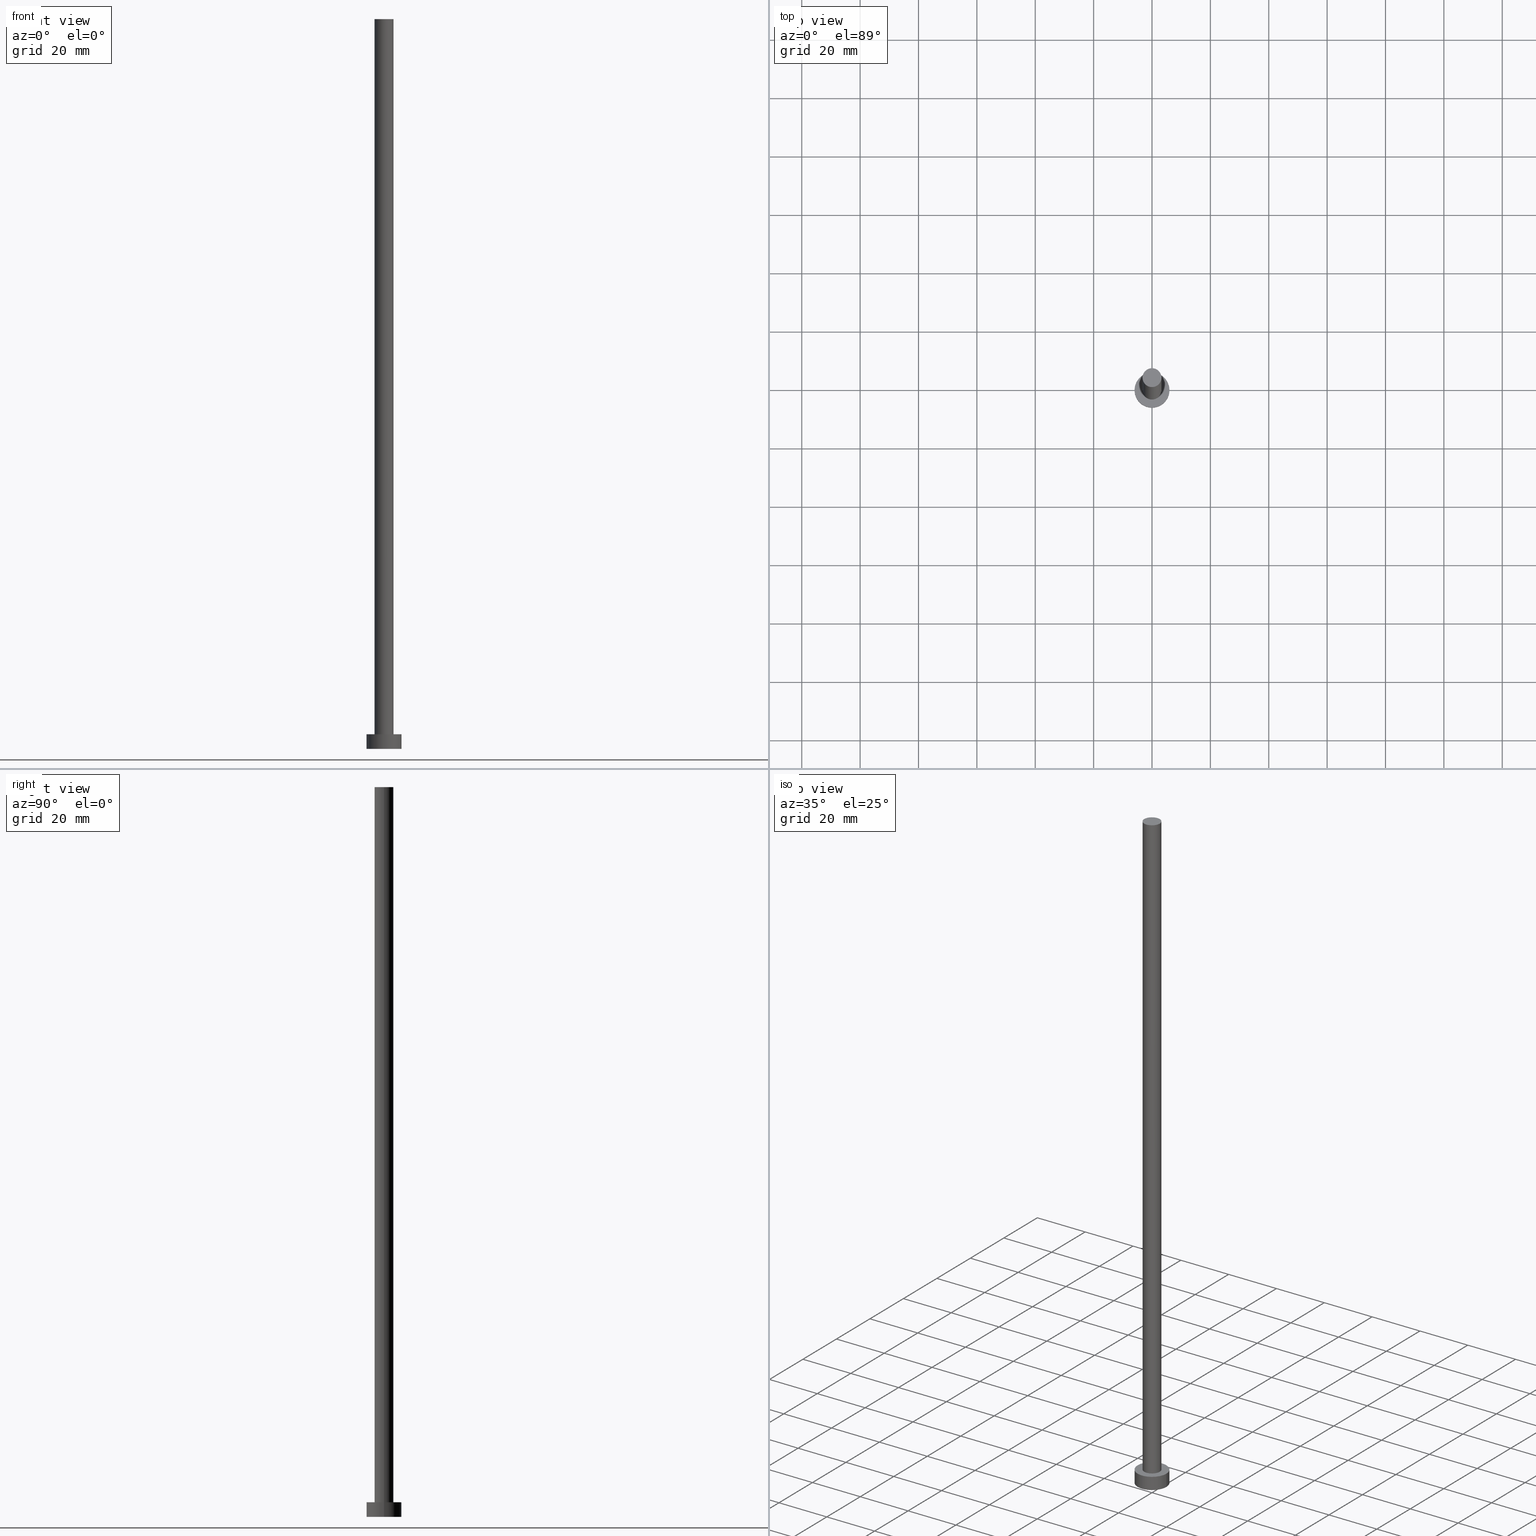
[diagram: canonical four-view strip — front | top / right | iso, engineering-drawing reading convention]
A machine part, canonical four-view strip (front | top / right | iso — engineering-drawing reading convention). The complete STEP part file that produces these views, byte-faithful:
ISO-10303-21;
HEADER;
FILE_DESCRIPTION (( 'STEP AP203' ),
    '1' );
FILE_NAME ('e601.STEP',
    '2023-02-13T11:48:17',
    ( '' ),
    ( '' ),
    'SwSTEP 2.0',
    'SolidWorks 2019',
    '' );
FILE_SCHEMA (( 'CONFIG_CONTROL_DESIGN' ));
ENDSEC;

DATA;
#1 = PERSON_AND_ORGANIZATION ( #57, #198 ) ;
#2 = PRODUCT_DEFINITION ( 'NEZN�M�', '', #228, #82 ) ;
#3 = CIRCLE ( 'NONE', #102, 6.000000000000000888 ) ;
#4 = DIRECTION ( 'NONE',  ( 1.000000000000000000, 0.000000000000000000, 0.000000000000000000 ) ) ;
#5 = LINE ( 'NONE', #59, #72 ) ;
#6 = DIRECTION ( 'NONE',  ( -1.000000000000000000, 0.000000000000000000, 0.000000000000000000 ) ) ;
#7 = ORIENTED_EDGE ( 'NONE', *, *, #90, .T. ) ;
#8 = DIRECTION ( 'NONE',  ( -0.000000000000000000, -0.000000000000000000, -1.000000000000000000 ) ) ;
#9 = ADVANCED_FACE ( 'NONE', ( #202 ), #203, .T. ) ;
#10 = MECHANICAL_CONTEXT ( 'NONE', #157, 'mechanical' ) ;
#11 = AXIS2_PLACEMENT_3D ( 'NONE', #145, #196, #134 ) ;
#12 = VERTEX_POINT ( 'NONE', #100 ) ;
#13 = CARTESIAN_POINT ( 'NONE',  ( 0.000000000000000000, 0.000000000000000000, 5.000000000000000000 ) ) ;
#14 = DATE_TIME_ROLE ( 'creation_date' ) ;
#15 = ORIENTED_EDGE ( 'NONE', *, *, #205, .T. ) ;
#16 = CC_DESIGN_APPROVAL ( #182, ( #2 ) ) ;
#17 = CARTESIAN_POINT ( 'NONE',  ( 0.000000000000000000, 0.000000000000000000, 250.0000000000000000 ) ) ;
#18 = ADVANCED_FACE ( 'NONE', ( #181 ), #225, .F. ) ;
#19 = COORDINATED_UNIVERSAL_TIME_OFFSET ( 1, 0, .AHEAD. ) ;
#20 = DIRECTION ( 'NONE',  ( 0.000000000000000000, 0.000000000000000000, 1.000000000000000000 ) ) ;
#21 = APPROVAL_ROLE ( '' ) ;
#22 = UNCERTAINTY_MEASURE_WITH_UNIT (LENGTH_MEASURE( 1.000000000000000082E-05 ), #65, 'distance_accuracy_value', 'NONE');
#23 = ORIENTED_EDGE ( 'NONE', *, *, #101, .T. ) ;
#24 = DIRECTION ( 'NONE',  ( -0.000000000000000000, -0.000000000000000000, -1.000000000000000000 ) ) ;
#25 = DIRECTION ( 'NONE',  ( 0.000000000000000000, 0.000000000000000000, 1.000000000000000000 ) ) ;
#26 = CARTESIAN_POINT ( 'NONE',  ( 0.000000000000000000, 0.000000000000000000, 5.000000000000000000 ) ) ;
#27 = LOCAL_TIME ( 12, 48, 17.00000000000000000, #137 ) ;
#28 = DIRECTION ( 'NONE',  ( 1.000000000000000000, 0.000000000000000000, 0.000000000000000000 ) ) ;
#29 = EDGE_LOOP ( 'NONE', ( #142, #220, #7, #116 ) ) ;
#30 = COORDINATED_UNIVERSAL_TIME_OFFSET ( 1, 0, .AHEAD. ) ;
#31 = CARTESIAN_POINT ( 'NONE',  ( -3.250000000000000444, 0.000000000000000000, 250.0000000000000000 ) ) ;
#32 = AXIS2_PLACEMENT_3D ( 'NONE', #141, #25, #40 ) ;
#33 = ORIENTED_EDGE ( 'NONE', *, *, #156, .F. ) ;
#34 = CALENDAR_DATE ( 2023, 13, 2 ) ;
#35 = PERSON_AND_ORGANIZATION ( #57, #198 ) ;
#36 = CALENDAR_DATE ( 2023, 13, 2 ) ;
#37 = CIRCLE ( 'NONE', #183, 3.250000000000000444 ) ;
#38 = FACE_OUTER_BOUND ( 'NONE', #43, .T. ) ;
#39 = AXIS2_PLACEMENT_3D ( 'NONE', #83, #169, #165 ) ;
#40 = DIRECTION ( 'NONE',  ( 1.000000000000000000, 0.000000000000000000, 0.000000000000000000 ) ) ;
#41 = ORIENTED_EDGE ( 'NONE', *, *, #156, .T. ) ;
#42 = AXIS2_PLACEMENT_3D ( 'NONE', #17, #119, #184 ) ;
#43 = EDGE_LOOP ( 'NONE', ( #135, #221, #15, #191 ) ) ;
#44 = PRODUCT ( 'e601', 'e601', '', ( #10 ) ) ;
#45 = CLOSED_SHELL ( 'NONE', ( #67, #189, #121, #58, #18, #109, #9 ) ) ;
#46 = EDGE_LOOP ( 'NONE', ( #68, #151, #120, #239 ) ) ;
#47 = APPROVAL_STATUS ( 'not_yet_approved' ) ;
#48 = ORIENTED_EDGE ( 'NONE', *, *, #224, .T. ) ;
#49 = AXIS2_PLACEMENT_3D ( 'NONE', #127, #64, #6 ) ;
#50 = VERTEX_POINT ( 'NONE', #55 ) ;
#51 = APPROVAL_DATE_TIME ( #243, #182 ) ;
#52 = COORDINATED_UNIVERSAL_TIME_OFFSET ( 1, 0, .AHEAD. ) ;
#53 = CC_DESIGN_DATE_AND_TIME_ASSIGNMENT ( #71, #14, ( #2 ) ) ;
#54 = SECURITY_CLASSIFICATION_LEVEL ( 'unclassified' ) ;
#55 = CARTESIAN_POINT ( 'NONE',  ( -3.250000000000000444, 0.000000000000000000, 5.000000000000000000 ) ) ;
#56 = DATE_AND_TIME ( #186, #216 ) ;
#57 = PERSON ( 'NEUR�EN�', 'NEUR�EN�', 'NEUR�EN�', ('NEUR�EN�'), ('NEUR�EN�'), ('NEUR�EN�') ) ;
#58 = ADVANCED_FACE ( 'NONE', ( #163, #94 ), #154, .T. ) ;
#59 = CARTESIAN_POINT ( 'NONE',  ( -6.000000000000000888, 0.000000000000000000, 5.000000000000000000 ) ) ;
#60 = APPROVAL ( #206, 'NEUR�EN�' ) ;
#61 = DIRECTION ( 'NONE',  ( -1.000000000000000000, 0.000000000000000000, 0.000000000000000000 ) ) ;
#62 = ORIENTED_EDGE ( 'NONE', *, *, #175, .F. ) ;
#63 = AXIS2_PLACEMENT_3D ( 'NONE', #123, #107, #122 ) ;
#64 = DIRECTION ( 'NONE',  ( -0.000000000000000000, -0.000000000000000000, -1.000000000000000000 ) ) ;
#65 =( LENGTH_UNIT ( ) NAMED_UNIT ( * ) SI_UNIT ( .MILLI., .METRE. ) );
#66 = EDGE_LOOP ( 'NONE', ( #104, #155 ) ) ;
#67 = ADVANCED_FACE ( 'NONE', ( #131 ), #250, .T. ) ;
#68 = ORIENTED_EDGE ( 'NONE', *, *, #232, .F. ) ;
#69 = APPLICATION_PROTOCOL_DEFINITION ( 'international standard', 'config_control_design', 1994, #172 ) ;
#70 = PRODUCT_DEFINITION_SHAPE ( 'NONE', 'NONE',  #2 ) ;
#71 = DATE_AND_TIME ( #223, #185 ) ;
#72 = VECTOR ( 'NONE', #24, 1000.000000000000000 ) ;
#73 = APPROVAL_DATE_TIME ( #95, #164 ) ;
#74 = CARTESIAN_POINT ( 'NONE',  ( 0.000000000000000000, 0.000000000000000000, 0.000000000000000000 ) ) ;
#75 = PERSON_AND_ORGANIZATION_ROLE ( 'creator' ) ;
#76 = CC_DESIGN_APPROVAL ( #60, ( #86 ) ) ;
#77 = CC_DESIGN_PERSON_AND_ORGANIZATION_ASSIGNMENT ( #242, #201, ( #228 ) ) ;
#78 = AXIS2_PLACEMENT_3D ( 'NONE', #13, #230, #91 ) ;
#79 = CYLINDRICAL_SURFACE ( 'NONE', #39, 6.000000000000000888 ) ;
#80 = AXIS2_PLACEMENT_3D ( 'NONE', #148, #237, #28 ) ;
#81 = VERTEX_POINT ( 'NONE', #31 ) ;
#82 = DESIGN_CONTEXT ( 'detailed design', #172, 'design' ) ;
#83 = CARTESIAN_POINT ( 'NONE',  ( 0.000000000000000000, 0.000000000000000000, 5.000000000000000000 ) ) ;
#84 = CYLINDRICAL_SURFACE ( 'NONE', #143, 3.250000000000000444 ) ;
#85 = CARTESIAN_POINT ( 'NONE',  ( 3.250000000000000444, 3.980102097228898231E-16, 5.000000000000000000 ) ) ;
#86 = SECURITY_CLASSIFICATION ( '', '', #54 ) ;
#87 = EDGE_CURVE ( 'NONE', #129, #132, #130, .T. ) ;
#88 = VECTOR ( 'NONE', #8, 1000.000000000000000 ) ;
#89 = ORIENTED_EDGE ( 'NONE', *, *, #224, .F. ) ;
#90 = EDGE_CURVE ( 'NONE', #81, #50, #219, .T. ) ;
#91 = DIRECTION ( 'NONE',  ( 1.000000000000000000, 0.000000000000000000, 0.000000000000000000 ) ) ;
#92 = DATE_TIME_ROLE ( 'classification_date' ) ;
#93 = AXIS2_PLACEMENT_3D ( 'NONE', #139, #227, #209 ) ;
#94 = FACE_OUTER_BOUND ( 'NONE', #106, .T. ) ;
#95 = DATE_AND_TIME ( #97, #117 ) ;
#96 = PERSON_AND_ORGANIZATION ( #57, #198 ) ;
#97 = CALENDAR_DATE ( 2023, 13, 2 ) ;
#98 = ORIENTED_EDGE ( 'NONE', *, *, #232, .T. ) ;
#99 = PERSON_AND_ORGANIZATION_ROLE ( 'classification_officer' ) ;
#100 = CARTESIAN_POINT ( 'NONE',  ( 3.250000000000000444, 3.980102097228898231E-16, 250.0000000000000000 ) ) ;
#101 = EDGE_CURVE ( 'NONE', #236, #129, #3, .T. ) ;
#102 = AXIS2_PLACEMENT_3D ( 'NONE', #235, #174, #110 ) ;
#103 = APPROVAL_PERSON_ORGANIZATION ( #234, #182, #133 ) ;
#104 = ORIENTED_EDGE ( 'NONE', *, *, #125, .F. ) ;
#105 = MANIFOLD_SOLID_BREP ( 'P�idat vysunut�m3', #45 ) ;
#106 = EDGE_LOOP ( 'NONE', ( #23, #98 ) ) ;
#107 = DIRECTION ( 'NONE',  ( 0.000000000000000000, 0.000000000000000000, 1.000000000000000000 ) ) ;
#108 = ORIENTED_EDGE ( 'NONE', *, *, #244, .T. ) ;
#109 = ADVANCED_FACE ( 'NONE', ( #193 ), #84, .T. ) ;
#110 = DIRECTION ( 'NONE',  ( 1.000000000000000000, 0.000000000000000000, 0.000000000000000000 ) ) ;
#111 = DIRECTION ( 'NONE',  ( -1.000000000000000000, 0.000000000000000000, 0.000000000000000000 ) ) ;
#112 = VECTOR ( 'NONE', #152, 1000.000000000000000 ) ;
#113 = CC_DESIGN_DATE_AND_TIME_ASSIGNMENT ( #118, #92, ( #86 ) ) ;
#114 = CARTESIAN_POINT ( 'NONE',  ( -3.250000000000000444, 0.000000000000000000, 250.0000000000000000 ) ) ;
#115 = DIRECTION ( 'NONE',  ( -0.000000000000000000, -0.000000000000000000, -1.000000000000000000 ) ) ;
#116 = ORIENTED_EDGE ( 'NONE', *, *, #175, .T. ) ;
#117 = LOCAL_TIME ( 12, 48, 17.00000000000000000, #19 ) ;
#118 = DATE_AND_TIME ( #36, #27 ) ;
#119 = DIRECTION ( 'NONE',  ( 0.000000000000000000, 0.000000000000000000, 1.000000000000000000 ) ) ;
#120 = ORIENTED_EDGE ( 'NONE', *, *, #215, .T. ) ;
#121 = ADVANCED_FACE ( 'NONE', ( #38 ), #214, .T. ) ;
#122 = DIRECTION ( 'NONE',  ( 1.000000000000000000, 0.000000000000000000, 0.000000000000000000 ) ) ;
#123 = CARTESIAN_POINT ( 'NONE',  ( 0.000000000000000000, 0.000000000000000000, 5.000000000000000000 ) ) ;
#124 = CIRCLE ( 'NONE', #11, 3.250000000000000444 ) ;
#125 = EDGE_CURVE ( 'NONE', #251, #132, #253, .T. ) ;
#126 = CARTESIAN_POINT ( 'NONE',  ( 0.000000000000000000, 0.000000000000000000, 5.000000000000000000 ) ) ;
#127 = CARTESIAN_POINT ( 'NONE',  ( 0.000000000000000000, 0.000000000000000000, 250.0000000000000000 ) ) ;
#128 = CARTESIAN_POINT ( 'NONE',  ( -6.000000000000000888, 0.000000000000000000, 0.000000000000000000 ) ) ;
#129 = VERTEX_POINT ( 'NONE', #194 ) ;
#130 = LINE ( 'NONE', #217, #112 ) ;
#131 = FACE_OUTER_BOUND ( 'NONE', #255, .T. ) ;
#132 = VERTEX_POINT ( 'NONE', #166 ) ;
#133 = APPROVAL_ROLE ( '' ) ;
#134 = DIRECTION ( 'NONE',  ( 1.000000000000000000, 0.000000000000000000, 0.000000000000000000 ) ) ;
#135 = ORIENTED_EDGE ( 'NONE', *, *, #87, .F. ) ;
#136 = APPROVAL_STATUS ( 'not_yet_approved' ) ;
#137 = COORDINATED_UNIVERSAL_TIME_OFFSET ( 1, 0, .AHEAD. ) ;
#138 = PERSON_AND_ORGANIZATION ( #57, #198 ) ;
#139 = CARTESIAN_POINT ( 'NONE',  ( 0.000000000000000000, 0.000000000000000000, 250.0000000000000000 ) ) ;
#140 = APPROVAL_PERSON_ORGANIZATION ( #96, #164, #180 ) ;
#141 = CARTESIAN_POINT ( 'NONE',  ( 0.000000000000000000, 0.000000000000000000, 0.000000000000000000 ) ) ;
#142 = ORIENTED_EDGE ( 'NONE', *, *, #244, .F. ) ;
#143 = AXIS2_PLACEMENT_3D ( 'NONE', #170, #249, #61 ) ;
#144 = APPROVAL_PERSON_ORGANIZATION ( #138, #60, #21 ) ;
#145 = CARTESIAN_POINT ( 'NONE',  ( 0.000000000000000000, 0.000000000000000000, 250.0000000000000000 ) ) ;
#146 = VERTEX_POINT ( 'NONE', #85 ) ;
#147 = AXIS2_PLACEMENT_3D ( 'NONE', #26, #246, #111 ) ;
#148 = CARTESIAN_POINT ( 'NONE',  ( 0.000000000000000000, 0.000000000000000000, 0.000000000000000000 ) ) ;
#149 = CC_DESIGN_PERSON_AND_ORGANIZATION_ASSIGNMENT ( #1, #240, ( #228 ) ) ;
#150 =( NAMED_UNIT ( * ) PLANE_ANGLE_UNIT ( ) SI_UNIT ( $, .RADIAN. ) );
#151 = ORIENTED_EDGE ( 'NONE', *, *, #87, .T. ) ;
#152 = DIRECTION ( 'NONE',  ( -0.000000000000000000, -0.000000000000000000, -1.000000000000000000 ) ) ;
#153 = APPLICATION_PROTOCOL_DEFINITION ( 'international standard', 'config_control_design', 1994, #157 ) ;
#154 = PLANE ( 'NONE',  #200 ) ;
#155 = ORIENTED_EDGE ( 'NONE', *, *, #215, .F. ) ;
#156 = EDGE_CURVE ( 'NONE', #146, #50, #37, .T. ) ;
#157 = APPLICATION_CONTEXT ( 'configuration controlled 3d designs of mechanical parts and assemblies' ) ;
#158 = CIRCLE ( 'NONE', #179, 6.000000000000000888 ) ;
#159 = PERSON_AND_ORGANIZATION ( #57, #198 ) ;
#160 = DIRECTION ( 'NONE',  ( 1.000000000000000000, 0.000000000000000000, -0.000000000000000000 ) ) ;
#161 = COORDINATED_UNIVERSAL_TIME_OFFSET ( 1, 0, .AHEAD. ) ;
#162 = SHAPE_DEFINITION_REPRESENTATION ( #70, #207 ) ;
#163 = FACE_BOUND ( 'NONE', #177, .T. ) ;
#164 = APPROVAL ( #136, 'NEUR�EN�' ) ;
#165 = DIRECTION ( 'NONE',  ( -1.000000000000000000, 0.000000000000000000, 0.000000000000000000 ) ) ;
#166 = CARTESIAN_POINT ( 'NONE',  ( 6.000000000000000888, 7.347880794884120722E-16, 0.000000000000000000 ) ) ;
#167 = CC_DESIGN_PERSON_AND_ORGANIZATION_ASSIGNMENT ( #173, #254, ( #44 ) ) ;
#168 = CARTESIAN_POINT ( 'NONE',  ( 0.000000000000000000, 0.000000000000000000, 0.000000000000000000 ) ) ;
#169 = DIRECTION ( 'NONE',  ( -0.000000000000000000, -0.000000000000000000, -1.000000000000000000 ) ) ;
#170 = CARTESIAN_POINT ( 'NONE',  ( 0.000000000000000000, 0.000000000000000000, 250.0000000000000000 ) ) ;
#171 = CARTESIAN_POINT ( 'NONE',  ( 3.250000000000000444, 3.980102097228898231E-16, 250.0000000000000000 ) ) ;
#172 = APPLICATION_CONTEXT ( 'configuration controlled 3d designs of mechanical parts and assemblies' ) ;
#173 = PERSON_AND_ORGANIZATION ( #57, #198 ) ;
#174 = DIRECTION ( 'NONE',  ( 0.000000000000000000, 0.000000000000000000, 1.000000000000000000 ) ) ;
#175 = EDGE_CURVE ( 'NONE', #50, #146, #188, .T. ) ;
#176 = AXIS2_PLACEMENT_3D ( 'NONE', #74, #20, #160 ) ;
#177 = EDGE_LOOP ( 'NONE', ( #62, #33 ) ) ;
#178 = CC_DESIGN_SECURITY_CLASSIFICATION ( #86, ( #228 ) ) ;
#179 = AXIS2_PLACEMENT_3D ( 'NONE', #168, #190, #248 ) ;
#180 = APPROVAL_ROLE ( '' ) ;
#181 = FACE_OUTER_BOUND ( 'NONE', #66, .T. ) ;
#182 = APPROVAL ( #47, 'NEUR�EN�' ) ;
#183 = AXIS2_PLACEMENT_3D ( 'NONE', #192, #247, #4 ) ;
#184 = DIRECTION ( 'NONE',  ( 1.000000000000000000, 0.000000000000000000, -0.000000000000000000 ) ) ;
#185 = LOCAL_TIME ( 12, 48, 17.00000000000000000, #52 ) ;
#186 = CALENDAR_DATE ( 2023, 13, 2 ) ;
#187 = EDGE_LOOP ( 'NONE', ( #204, #48 ) ) ;
#188 = CIRCLE ( 'NONE', #63, 3.250000000000000444 ) ;
#189 = ADVANCED_FACE ( 'NONE', ( #211 ), #79, .T. ) ;
#190 = DIRECTION ( 'NONE',  ( 0.000000000000000000, 0.000000000000000000, 1.000000000000000000 ) ) ;
#191 = ORIENTED_EDGE ( 'NONE', *, *, #125, .T. ) ;
#192 = CARTESIAN_POINT ( 'NONE',  ( 0.000000000000000000, 0.000000000000000000, 5.000000000000000000 ) ) ;
#193 = FACE_OUTER_BOUND ( 'NONE', #29, .T. ) ;
#194 = CARTESIAN_POINT ( 'NONE',  ( 6.000000000000000888, 7.347880794884120722E-16, 5.000000000000000000 ) ) ;
#195 = CC_DESIGN_APPROVAL ( #164, ( #228 ) ) ;
#196 = DIRECTION ( 'NONE',  ( 0.000000000000000000, 0.000000000000000000, 1.000000000000000000 ) ) ;
#197 = DIRECTION ( 'NONE',  ( 0.000000000000000000, 0.000000000000000000, 1.000000000000000000 ) ) ;
#198 = ORGANIZATION ( 'NEUR�EN�', 'NEUR�EN�', '' ) ;
#199 = CIRCLE ( 'NONE', #78, 6.000000000000000888 ) ;
#200 = AXIS2_PLACEMENT_3D ( 'NONE', #126, #197, #213 ) ;
#201 = PERSON_AND_ORGANIZATION_ROLE ( 'design_supplier' ) ;
#202 = FACE_OUTER_BOUND ( 'NONE', #187, .T. ) ;
#203 = PLANE ( 'NONE',  #42 ) ;
#204 = ORIENTED_EDGE ( 'NONE', *, *, #229, .T. ) ;
#205 = EDGE_CURVE ( 'NONE', #236, #251, #5, .T. ) ;
#206 = APPROVAL_STATUS ( 'not_yet_approved' ) ;
#207 = ADVANCED_BREP_SHAPE_REPRESENTATION ( 'e601', ( #105, #80 ), #208 ) ;
#208 =( GEOMETRIC_REPRESENTATION_CONTEXT ( 3 ) GLOBAL_UNCERTAINTY_ASSIGNED_CONTEXT ( ( #22 ) ) GLOBAL_UNIT_ASSIGNED_CONTEXT ( ( #65, #150, #233 ) ) REPRESENTATION_CONTEXT ( 'NONE', 'WORKASPACE' ) );
#209 = DIRECTION ( 'NONE',  ( 1.000000000000000000, 0.000000000000000000, 0.000000000000000000 ) ) ;
#210 = CC_DESIGN_PERSON_AND_ORGANIZATION_ASSIGNMENT ( #35, #75, ( #2 ) ) ;
#211 = FACE_OUTER_BOUND ( 'NONE', #46, .T. ) ;
#212 = CIRCLE ( 'NONE', #93, 3.250000000000000444 ) ;
#213 = DIRECTION ( 'NONE',  ( 1.000000000000000000, 0.000000000000000000, -0.000000000000000000 ) ) ;
#214 = CYLINDRICAL_SURFACE ( 'NONE', #147, 6.000000000000000888 ) ;
#215 = EDGE_CURVE ( 'NONE', #132, #251, #158, .T. ) ;
#216 = LOCAL_TIME ( 12, 48, 17.00000000000000000, #161 ) ;
#217 = CARTESIAN_POINT ( 'NONE',  ( 6.000000000000000888, 7.347880794884120722E-16, 5.000000000000000000 ) ) ;
#218 = CARTESIAN_POINT ( 'NONE',  ( -6.000000000000000888, 0.000000000000000000, 5.000000000000000000 ) ) ;
#219 = LINE ( 'NONE', #114, #222 ) ;
#220 = ORIENTED_EDGE ( 'NONE', *, *, #229, .F. ) ;
#221 = ORIENTED_EDGE ( 'NONE', *, *, #101, .F. ) ;
#222 = VECTOR ( 'NONE', #115, 1000.000000000000000 ) ;
#223 = CALENDAR_DATE ( 2023, 13, 2 ) ;
#224 = EDGE_CURVE ( 'NONE', #12, #81, #212, .T. ) ;
#225 = PLANE ( 'NONE',  #176 ) ;
#226 = LOCAL_TIME ( 12, 48, 17.00000000000000000, #30 ) ;
#227 = DIRECTION ( 'NONE',  ( 0.000000000000000000, 0.000000000000000000, 1.000000000000000000 ) ) ;
#228 = PRODUCT_DEFINITION_FORMATION_WITH_SPECIFIED_SOURCE ( 'LIBOVOLN�', '', #44, .NOT_KNOWN. ) ;
#229 = EDGE_CURVE ( 'NONE', #81, #12, #124, .T. ) ;
#230 = DIRECTION ( 'NONE',  ( 0.000000000000000000, 0.000000000000000000, 1.000000000000000000 ) ) ;
#231 = ORIENTED_EDGE ( 'NONE', *, *, #90, .F. ) ;
#232 = EDGE_CURVE ( 'NONE', #129, #236, #199, .T. ) ;
#233 =( NAMED_UNIT ( * ) SI_UNIT ( $, .STERADIAN. ) SOLID_ANGLE_UNIT ( ) );
#234 = PERSON_AND_ORGANIZATION ( #57, #198 ) ;
#235 = CARTESIAN_POINT ( 'NONE',  ( 0.000000000000000000, 0.000000000000000000, 5.000000000000000000 ) ) ;
#236 = VERTEX_POINT ( 'NONE', #218 ) ;
#237 = DIRECTION ( 'NONE',  ( 0.000000000000000000, 0.000000000000000000, 1.000000000000000000 ) ) ;
#238 = LINE ( 'NONE', #171, #88 ) ;
#239 = ORIENTED_EDGE ( 'NONE', *, *, #205, .F. ) ;
#240 = PERSON_AND_ORGANIZATION_ROLE ( 'creator' ) ;
#241 = PRODUCT_RELATED_PRODUCT_CATEGORY ( 'detail', '', ( #44 ) ) ;
#242 = PERSON_AND_ORGANIZATION ( #57, #198 ) ;
#243 = DATE_AND_TIME ( #34, #226 ) ;
#244 = EDGE_CURVE ( 'NONE', #12, #146, #238, .T. ) ;
#245 = APPROVAL_DATE_TIME ( #56, #60 ) ;
#246 = DIRECTION ( 'NONE',  ( -0.000000000000000000, -0.000000000000000000, -1.000000000000000000 ) ) ;
#247 = DIRECTION ( 'NONE',  ( 0.000000000000000000, 0.000000000000000000, 1.000000000000000000 ) ) ;
#248 = DIRECTION ( 'NONE',  ( 1.000000000000000000, 0.000000000000000000, 0.000000000000000000 ) ) ;
#249 = DIRECTION ( 'NONE',  ( -0.000000000000000000, -0.000000000000000000, -1.000000000000000000 ) ) ;
#250 = CYLINDRICAL_SURFACE ( 'NONE', #49, 3.250000000000000444 ) ;
#251 = VERTEX_POINT ( 'NONE', #128 ) ;
#252 = CC_DESIGN_PERSON_AND_ORGANIZATION_ASSIGNMENT ( #159, #99, ( #86 ) ) ;
#253 = CIRCLE ( 'NONE', #32, 6.000000000000000888 ) ;
#254 = PERSON_AND_ORGANIZATION_ROLE ( 'design_owner' ) ;
#255 = EDGE_LOOP ( 'NONE', ( #89, #108, #41, #231 ) ) ;
ENDSEC;
END-ISO-10303-21;
